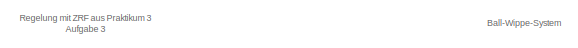
[diagram: root canvas - part 1/5, top left region]
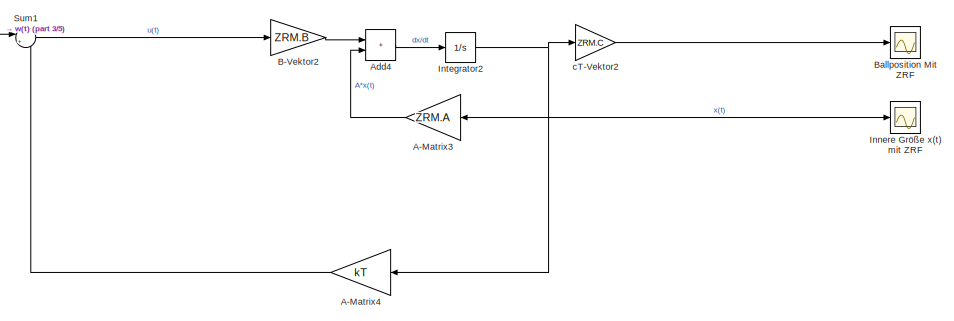
[diagram: root canvas - part 2/5, top center region]
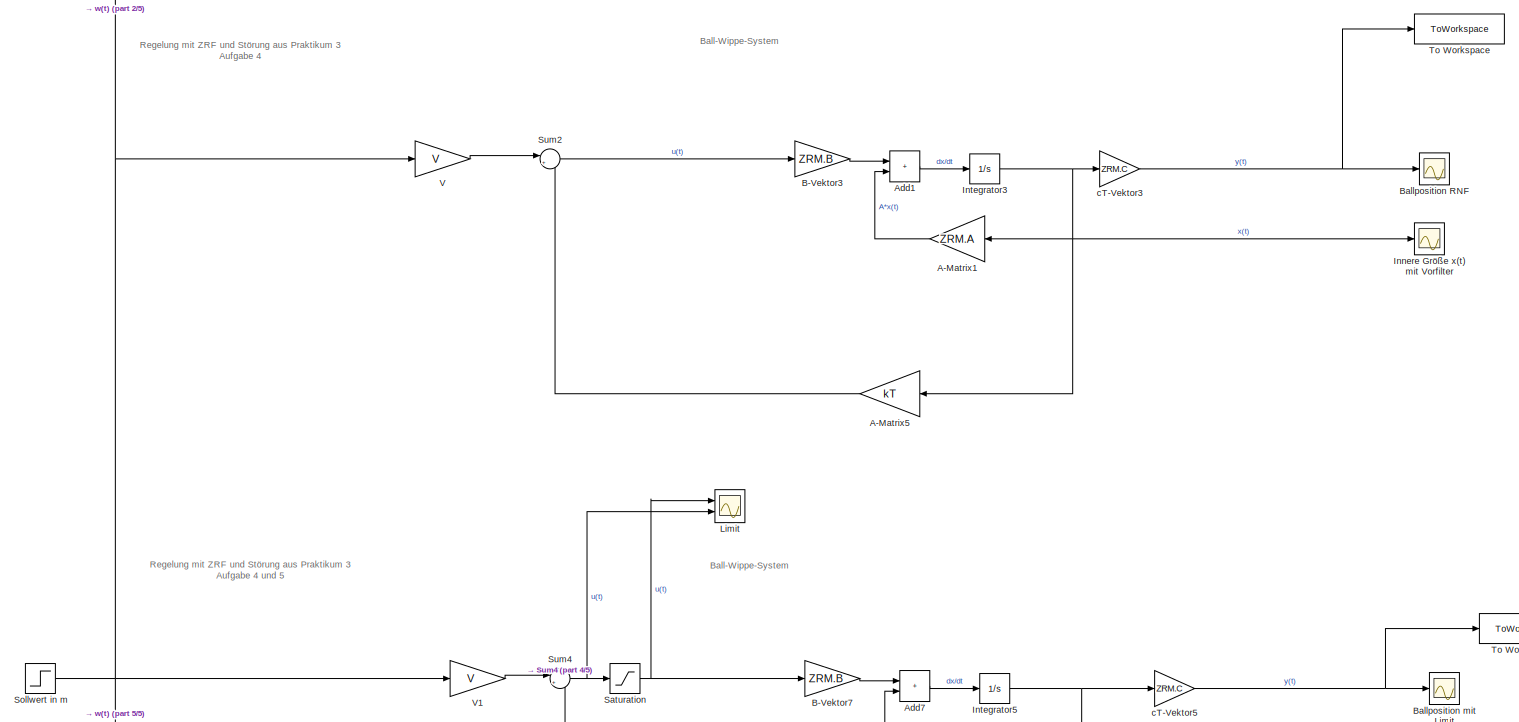
[diagram: root canvas - part 3/5, full width, middle band]
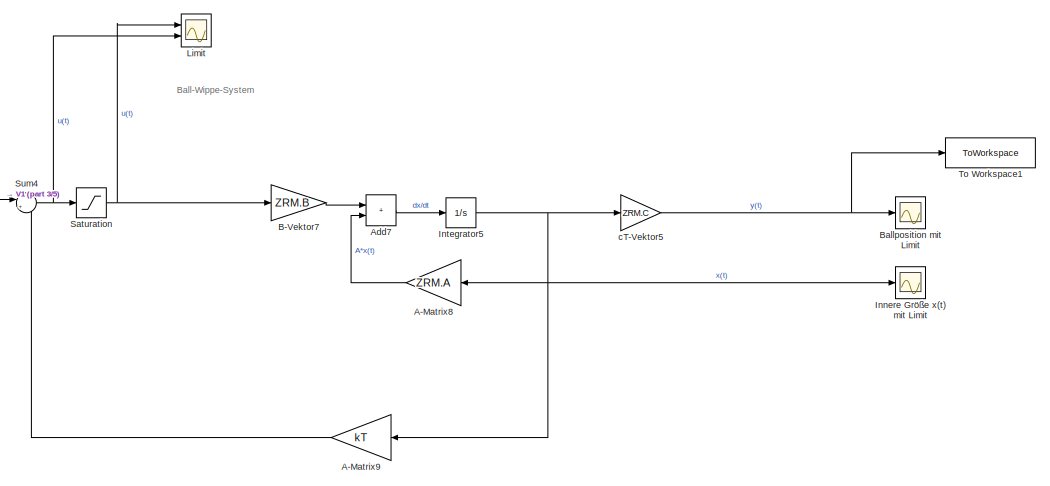
[diagram: root canvas - part 4/5, central region]
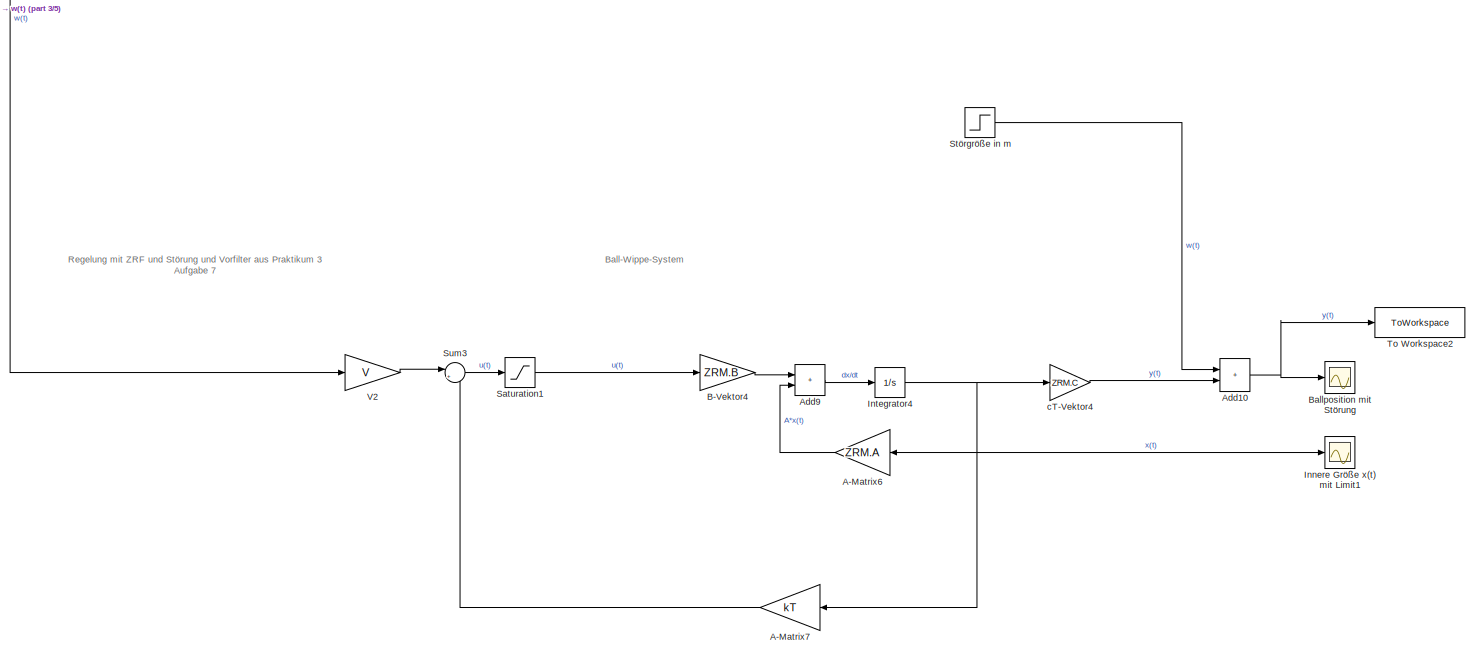
[diagram: root canvas - part 5/5, full width, bottom band]
MODEL slx_ecc613884357
KIND model
CONFIG AbsTol = auto
CONFIG EnableMultiTasking = off
CONFIG FixedStep = 0.0001
CONFIG MaxStep = auto
CONFIG MinStep = auto
CONFIG RelTol = 1e-3
CONFIG SampleTimeConstraint = Unconstrained
CONFIG SolverName = FixedStepAuto
CONFIG StartTime = 0.0
CONFIG StopTime = 20
BLOCK [Gain] A-Matrix1
  Gain = ZRM.A
  Multiplication = Matrix(K*u) (u vector)
  NameLocation = top
BLOCK [Gain] A-Matrix3
  Gain = ZRM.A
  Multiplication = Matrix(K*u) (u vector)
  NameLocation = top
BLOCK [Gain] A-Matrix4
  Gain = kT
  Multiplication = Matrix(K*u) (u vector)
  NameLocation = top
BLOCK [Gain] A-Matrix5
  Gain = kT
  Multiplication = Matrix(K*u) (u vector)
  NameLocation = top
BLOCK [Gain] A-Matrix6
  Gain = ZRM.A
  Multiplication = Matrix(K*u) (u vector)
  NameLocation = top
BLOCK [Gain] A-Matrix7
  Gain = kT
  Multiplication = Matrix(K*u) (u vector)
  NameLocation = top
BLOCK [Gain] A-Matrix8
  Gain = ZRM.A
  Multiplication = Matrix(K*u) (u vector)
  NameLocation = top
BLOCK [Gain] A-Matrix9
  Gain = kT
  Multiplication = Matrix(K*u) (u vector)
  NameLocation = top
BLOCK [Sum] Add1
  IconShape = rectangular
  Ports = [2, 1]
BLOCK [Sum] Add10
  IconShape = rectangular
  Ports = [2, 1]
BLOCK [Sum] Add4
  IconShape = rectangular
  Ports = [2, 1]
BLOCK [Sum] Add7
  IconShape = rectangular
  Ports = [2, 1]
BLOCK [Sum] Add9
  IconShape = rectangular
  Ports = [2, 1]
BLOCK [Gain] B-Vektor2
  Gain = ZRM.B
  Multiplication = Matrix(K*u) (u vector)
BLOCK [Gain] B-Vektor3
  Gain = ZRM.B
  Multiplication = Matrix(K*u) (u vector)
BLOCK [Gain] B-Vektor4
  Gain = ZRM.B
  Multiplication = Matrix(K*u) (u vector)
BLOCK [Gain] B-Vektor7
  Gain = ZRM.B
  Multiplication = Matrix(K*u) (u vector)
BLOCK [Scope] Ballposition Mit ZRF
  Floating = off
  NumInputPorts = 1
  Ports = [1]
  ScopeSpecificationString = Simulink.scopes.TimeScopeBlockCfg('CurrentConfiguration', extmgr.ConfigurationSet(extmgr.Configuration('Core','General UI',true),extmgr.Configuration('Core','Source UI',true),extmgr.Configuration('Sources','WiredSimulink',true,'DataLoggingVariableName','ScopeData3'),extmgr.Configuration('Visuals','Time Domain',true,'SerializedDisplays',{struct('MinYLimReal','-0.04012','MaxYLimReal','0.13583','YLab...<+1527ch>
BLOCK [Scope] Ballposition RNF
  Floating = off
  NumInputPorts = 1
  Ports = [1]
  ScopeSpecificationString = Simulink.scopes.TimeScopeBlockCfg('CurrentConfiguration', extmgr.ConfigurationSet(extmgr.Configuration('Core','General UI',true),extmgr.Configuration('Core','Source UI',true),extmgr.Configuration('Sources','WiredSimulink',true),extmgr.Configuration('Visuals','Time Domain',true,'SerializedDisplays',{struct('MinYLimReal','-17.93586','MaxYLimReal','60.71569','YLabelReal','','MinYLimMag','0.00000','Ma...<+1475ch>
BLOCK [Scope] Ballposition mit Limit
  Floating = off
  NumInputPorts = 1
  Ports = [1]
  ScopeSpecificationString = Simulink.scopes.TimeScopeBlockCfg('CurrentConfiguration', extmgr.ConfigurationSet(extmgr.Configuration('Core','General UI',true),extmgr.Configuration('Core','Source UI',true),extmgr.Configuration('Sources','WiredSimulink',true,'DataLoggingVariableName','ScopeData8'),extmgr.Configuration('Visuals','Time Domain',true,'SerializedDisplays',{struct('MinYLimReal','-4.79812','MaxYLimReal','5.04382','YLab...<+1508ch>
BLOCK [Scope] Ballposition mit Störung
  Floating = off
  NumInputPorts = 1
  Ports = [1]
  ScopeSpecificationString = Simulink.scopes.TimeScopeBlockCfg('CurrentConfiguration', extmgr.ConfigurationSet(extmgr.Configuration('Core','General UI',true),extmgr.Configuration('Core','Source UI',true),extmgr.Configuration('Sources','WiredSimulink',true,'DataLoggingVariableName','ScopeData6'),extmgr.Configuration('Visuals','Time Domain',true,'SerializedDisplays',{struct('MinYLimReal','-0.15171','MaxYLimReal','1.3502','YLabe...<+1530ch>
BLOCK [Scope] Innere Größe x(t) mit Limit
  Floating = off
  NumInputPorts = 1
  Ports = [1]
  ScopeSpecificationString = Simulink.scopes.TimeScopeBlockCfg('CurrentConfiguration', extmgr.ConfigurationSet(extmgr.Configuration('Core','General UI',true),extmgr.Configuration('Core','Source UI',true),extmgr.Configuration('Sources','WiredSimulink',true,'DataLoggingVariableName','ScopeData9'),extmgr.Configuration('Visuals','Time Domain',true,'SerializedDisplays',{struct('MinYLimReal','-4.76998','MaxYLimReal','3.60426','YLab...<+1642ch>
BLOCK [Scope] Innere Größe x(t) mit Limit1
  Floating = off
  NumInputPorts = 1
  Ports = [1]
  ScopeSpecificationString = Simulink.scopes.TimeScopeBlockCfg('CurrentConfiguration', extmgr.ConfigurationSet(extmgr.Configuration('Core','General UI',true),extmgr.Configuration('Core','Source UI',true),extmgr.Configuration('Sources','WiredSimulink',true,'DataLoggingVariableName','ScopeData7'),extmgr.Configuration('Visuals','Time Domain',true,'SerializedDisplays',{struct('MinYLimReal','-4.81593','MaxYLimReal','3.664','YLabel...<+1638ch>
BLOCK [Scope] Innere Größe x(t) mit Vorfilter
  Floating = off
  NumInputPorts = 1
  Ports = [1]
  ScopeSpecificationString = Simulink.scopes.TimeScopeBlockCfg('CurrentConfiguration', extmgr.ConfigurationSet(extmgr.Configuration('Core','General UI',true),extmgr.Configuration('Core','Source UI',true),extmgr.Configuration('Sources','WiredSimulink',true,'DataLoggingVariableName','ScopeData5'),extmgr.Configuration('Visuals','Time Domain',true,'SerializedDisplays',{struct('MinYLimReal','-3.05941','MaxYLimReal','5.58452','YLab...<+1642ch>
BLOCK [Scope] Innere Größe x(t) mit ZRF
  Floating = off
  NumInputPorts = 1
  Ports = [1]
  ScopeSpecificationString = Simulink.scopes.TimeScopeBlockCfg('CurrentConfiguration', extmgr.ConfigurationSet(extmgr.Configuration('Core','General UI',true),extmgr.Configuration('Core','Source UI',true),extmgr.Configuration('Sources','WiredSimulink',true,'DataLoggingVariableName','ScopeData4'),extmgr.Configuration('Visuals','Time Domain',true,'SerializedDisplays',{struct('MinYLimReal','-0.00684','MaxYLimReal','0.01249','YLab...<+1665ch>
BLOCK [Integrator] Integrator2
  InitialCondition = x0
  Ports = [1, 1]
BLOCK [Integrator] Integrator3
  InitialCondition = x0
  Ports = [1, 1]
BLOCK [Integrator] Integrator4
  InitialCondition = x0
  Ports = [1, 1]
BLOCK [Integrator] Integrator5
  InitialCondition = x0
  Ports = [1, 1]
BLOCK [Scope] Limit
  Floating = off
  NumInputPorts = 2
  Ports = [2]
  ScopeSpecificationString = Simulink.scopes.TimeScopeBlockCfg('CurrentConfiguration', extmgr.ConfigurationSet(extmgr.Configuration('Core','General UI',true),extmgr.Configuration('Core','Source UI',true),extmgr.Configuration('Sources','WiredSimulink',true,'DataLoggingVariableName','ScopeData10'),extmgr.Configuration('Visuals','Time Domain',true,'SerializedDisplays',{struct('MinYLimReal','-70.59679','MaxYLimReal','107.17981','...<+1525ch>
BLOCK [Saturate] Saturation
  LowerLimit = -6.45
  UpperLimit = 6.45
BLOCK [Saturate] Saturation1
  LowerLimit = -6.45
  UpperLimit = 6.45
BLOCK [Step] Sollwert in m
  After = wsoll
  SampleTime = 0
  Time = zeitverzoegerung
BLOCK [Step] Störgröße in m
  After = z0
  SampleTime = 0
  Time = tstoer
BLOCK [Sum] Sum1
  Inputs = |+-
  Ports = [2, 1]
BLOCK [Sum] Sum2
  Inputs = |+-
  Ports = [2, 1]
BLOCK [Sum] Sum3
  Inputs = |+-
  Ports = [2, 1]
BLOCK [Sum] Sum4
  Inputs = |+-
  Ports = [2, 1]
BLOCK [ToWorkspace] To Workspace
  FixptAsFi = on
  MaxDataPoints = inf
  Ports = [1]
  SampleTime = -1
  SaveFormat = Timeseries
  VariableName = SimuYtRNFFilter
BLOCK [ToWorkspace] To Workspace1
  FixptAsFi = on
  MaxDataPoints = inf
  Ports = [1]
  SampleTime = -1
  SaveFormat = Timeseries
  VariableName = SimuYtRNFFilterULimit
BLOCK [ToWorkspace] To Workspace2
  FixptAsFi = on
  MaxDataPoints = inf
  Ports = [1]
  SampleTime = -1
  SaveFormat = Timeseries
  VariableName = SimuYtRNFStoerung
BLOCK [Gain] V
  Gain = V
  Multiplication = Matrix(K*u)
BLOCK [Gain] V1
  Gain = V
BLOCK [Gain] V2
  Gain = V
BLOCK [Gain] cT-Vektor2
  Gain = ZRM.C
  Multiplication = Matrix(K*u) (u vector)
BLOCK [Gain] cT-Vektor3
  Gain = ZRM.C
  Multiplication = Matrix(K*u) (u vector)
BLOCK [Gain] cT-Vektor4
  Gain = ZRM.C
  Multiplication = Matrix(K*u) (u vector)
BLOCK [Gain] cT-Vektor5
  Gain = ZRM.C
  Multiplication = Matrix(K*u) (u vector)
ANNOTATION (root): Ball-Wippe-System
ANNOTATION (root): Regelung mit ZRF aus Praktikum 3 Aufgabe 3
ANNOTATION (root): Regelung mit ZRF und Störung aus Praktikum 3 Aufgabe 4
ANNOTATION (root): Regelung mit ZRF und Störung aus Praktikum 3 Aufgabe 4 und 5
ANNOTATION (root): Regelung mit ZRF und Störung und Vorfilter aus Praktikum 3 Aufgabe 7
LINE A-Matrix1:1 -> Add1:2
LINE A-Matrix3:1 -> Add4:2
LINE A-Matrix4:1 -> Sum1:2
LINE A-Matrix5:1 -> Sum2:2
LINE A-Matrix6:1 -> Add9:2
LINE A-Matrix7:1 -> Sum3:2
LINE A-Matrix8:1 -> Add7:2
LINE A-Matrix9:1 -> Sum4:2
NET Add10:1 -> Ballposition mit Störung:1, To Workspace2:1
LINE Add1:1 -> Integrator3:1
LINE Add4:1 -> Integrator2:1
LINE Add7:1 -> Integrator5:1
LINE Add9:1 -> Integrator4:1
LINE B-Vektor2:1 -> Add4:1
LINE B-Vektor3:1 -> Add1:1
LINE B-Vektor4:1 -> Add9:1
LINE B-Vektor7:1 -> Add7:1
NET Integrator2:1 -> A-Matrix3:1, A-Matrix4:1, Innere Größe x(t) mit ZRF:1, cT-Vektor2:1
NET Integrator3:1 -> A-Matrix1:1, A-Matrix5:1, Innere Größe x(t) mit Vorfilter:1, cT-Vektor3:1
NET Integrator4:1 -> A-Matrix6:1, A-Matrix7:1, Innere Größe x(t) mit Limit1:1, cT-Vektor4:1
NET Integrator5:1 -> A-Matrix8:1, A-Matrix9:1, Innere Größe x(t) mit Limit:1, cT-Vektor5:1
LINE Saturation1:1 -> B-Vektor4:1
NET Saturation:1 -> B-Vektor7:1, Limit:1
NET Sollwert in m:1 -> Sum1:1, V1:1, V2:1, V:1
LINE Störgröße in m:1 -> Add10:1
LINE Sum1:1 -> B-Vektor2:1
LINE Sum2:1 -> B-Vektor3:1
LINE Sum3:1 -> Saturation1:1
NET Sum4:1 -> Limit:2, Saturation:1
LINE V1:1 -> Sum4:1
LINE V2:1 -> Sum3:1
LINE V:1 -> Sum2:1
LINE cT-Vektor2:1 -> Ballposition Mit ZRF:1
NET cT-Vektor3:1 -> Ballposition RNF:1, To Workspace:1
LINE cT-Vektor4:1 -> Add10:2
NET cT-Vektor5:1 -> Ballposition mit Limit:1, To Workspace1:1
note: NET lines group one-source signal fan-out (src -> all destinations, sorted); 1:1 wires keep LINE
